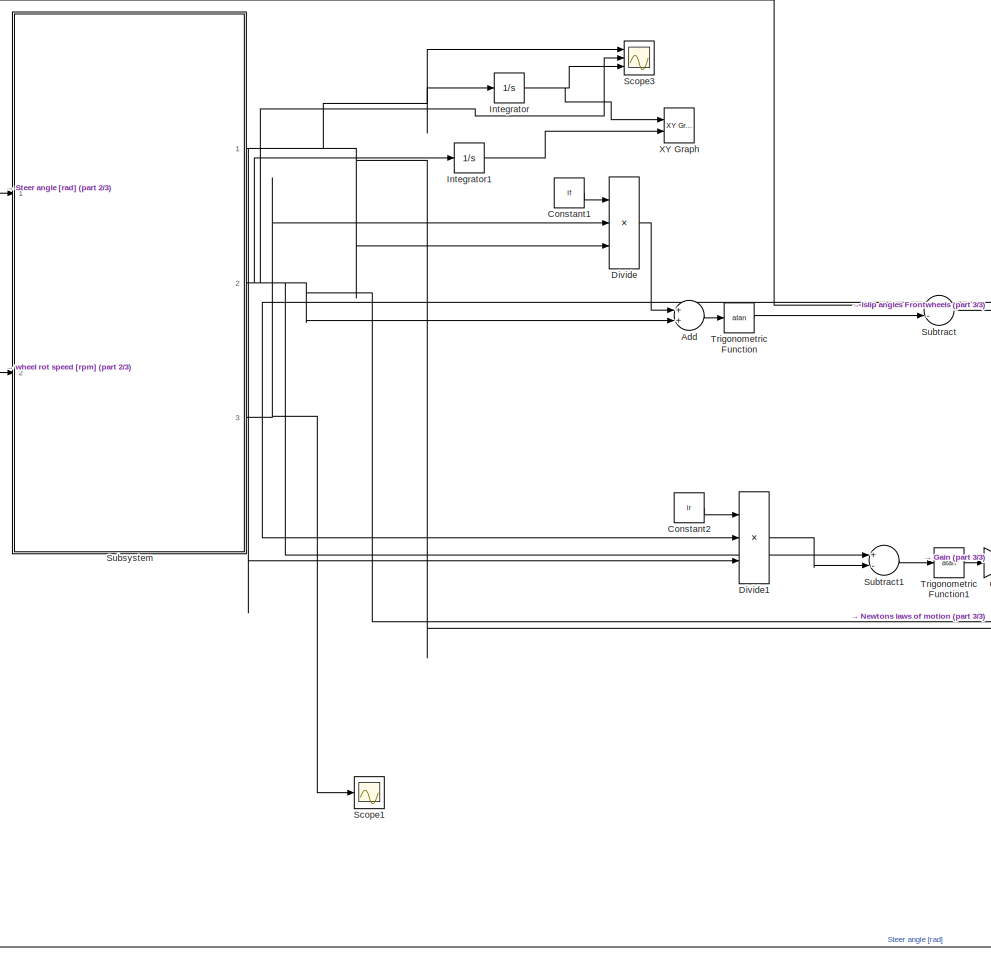
[diagram: root canvas - part 1/3, center side, full height]
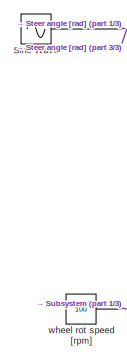
[diagram: root canvas - part 2/3, top left region]
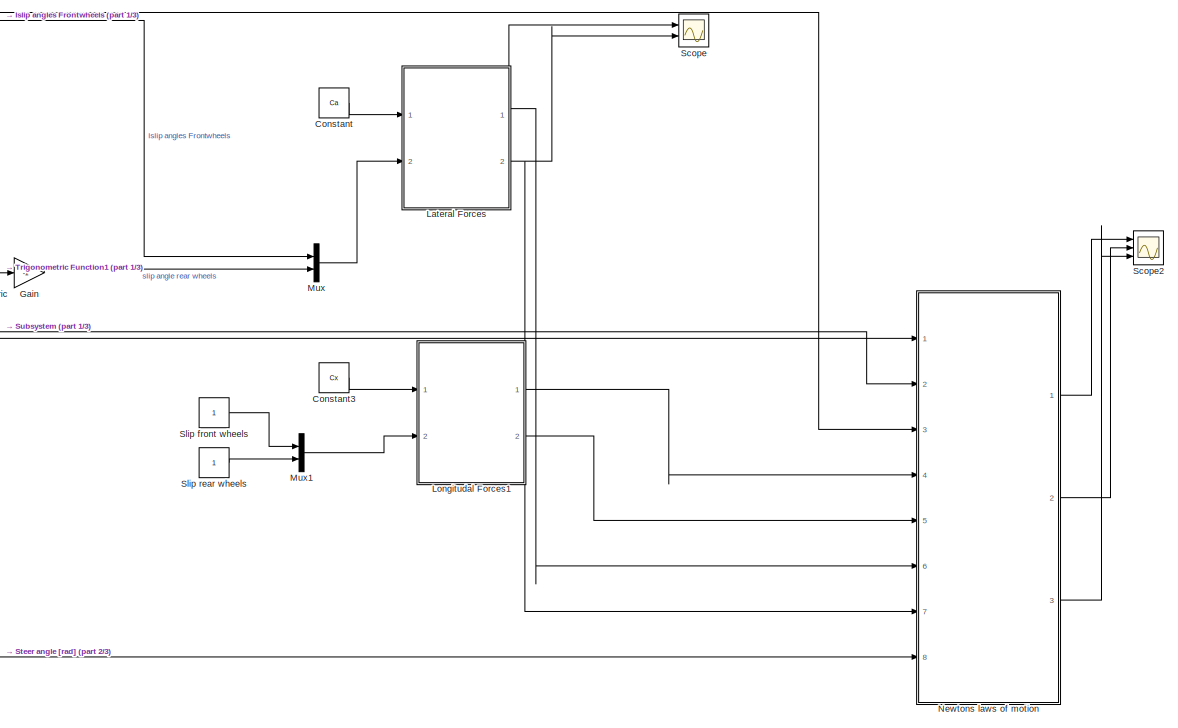
[diagram: root canvas - part 3/3, middle right region]
MODEL slx_64b74eef615d
KIND model
CONFIG AbsTol = auto
CONFIG EnableMultiTasking = off
CONFIG FixedStep = auto
CONFIG MaxStep = auto
CONFIG MinStep = auto
CONFIG RelTol = 1e-3
CONFIG SampleTimeConstraint = Unconstrained
CONFIG Solver = VariableStepAuto
CONFIG SolverName = VariableStepAuto
CONFIG StartTime = 0.0
CONFIG StopTime = 10.0
BLOCK [Sum] Add
  InputSameDT = off
  OutDataTypeStr = Inherit: Inherit via internal rule
  Ports = [2, 1]
  SaturateOnIntegerOverflow = off
BLOCK [Constant] Constant
  Value = Ca
BLOCK [Constant] Constant1
  Value = lf
BLOCK [Constant] Constant2
  Value = lr
BLOCK [Constant] Constant3
  Value = Cx
BLOCK [Product] Divide
  InputSameDT = off
  Inputs = **/
  OutDataTypeStr = Inherit: Inherit via internal rule
  Ports = [3, 1]
  RndMeth = Floor
  SaturateOnIntegerOverflow = off
BLOCK [Product] Divide1
  InputSameDT = off
  Inputs = **/
  OutDataTypeStr = Inherit: Inherit via internal rule
  Ports = [3, 1]
  RndMeth = Floor
  SaturateOnIntegerOverflow = off
BLOCK [Gain] Gain
  Gain = -1
  OutDataTypeStr = Inherit: Inherit via internal rule
  ParamDataTypeStr = Inherit: Inherit via internal rule
  SaturateOnIntegerOverflow = off
BLOCK [Integrator] Integrator
  Ports = [1, 1]
BLOCK [Integrator] Integrator1
  Ports = [1, 1]
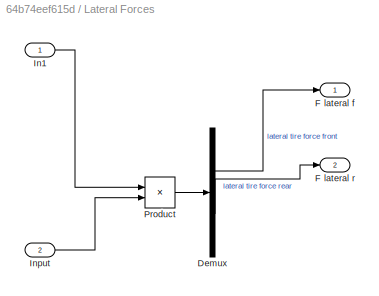
BLOCK [SubSystem] Lateral Forces
  Ports = [2, 2]
  RequestExecContextInheritance = off
BLOCK [Demux] Lateral Forces/Demux
  DisplayOption = bar
  Outputs = 2
  Ports = [1, 2]
BLOCK [Outport] Lateral Forces/F lateral f
  IconDisplay = Port number
BLOCK [Outport] Lateral Forces/F lateral r
  IconDisplay = Port number
  Port = 2
BLOCK [Inport] Lateral Forces/In1
  IconDisplay = Port number
BLOCK [Inport] Lateral Forces/Input
  IconDisplay = Port number
  Port = 2
BLOCK [Product] Lateral Forces/Product
  InputSameDT = off
  OutDataTypeStr = Inherit: Inherit via internal rule
  Ports = [2, 1]
  RndMeth = Floor
  SaturateOnIntegerOverflow = off
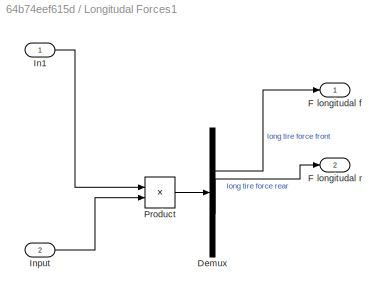
BLOCK [SubSystem] Longitudal Forces1
  Ports = [2, 2]
  RequestExecContextInheritance = off
BLOCK [Demux] Longitudal Forces1/Demux
  DisplayOption = bar
  Outputs = 2
  Ports = [1, 2]
BLOCK [Outport] Longitudal Forces1/F longitudal f
  IconDisplay = Port number
BLOCK [Outport] Longitudal Forces1/F longitudal r
  IconDisplay = Port number
  Port = 2
BLOCK [Inport] Longitudal Forces1/In1
  IconDisplay = Port number
BLOCK [Inport] Longitudal Forces1/Input
  IconDisplay = Port number
  Port = 2
BLOCK [Product] Longitudal Forces1/Product
  InputSameDT = off
  OutDataTypeStr = Inherit: Inherit via internal rule
  Ports = [2, 1]
  RndMeth = Floor
  SaturateOnIntegerOverflow = off
BLOCK [Mux] Mux
  DisplayOption = bar
  Inputs = 2
  Ports = [2, 1]
BLOCK [Mux] Mux1
  DisplayOption = bar
  Inputs = 2
  Ports = [2, 1]
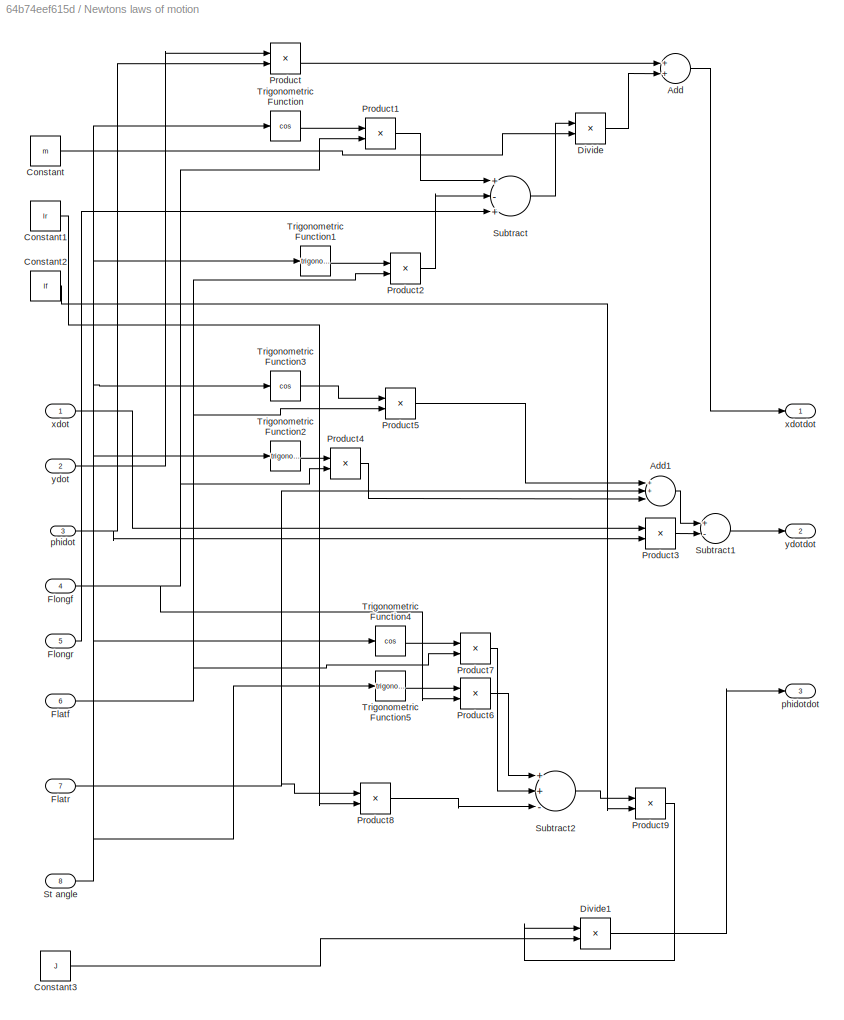
BLOCK [SubSystem] Newtons laws of motion 
  Ports = [8, 3]
  RequestExecContextInheritance = off
BLOCK [Sum] Newtons laws of motion /Add
  InputSameDT = off
  OutDataTypeStr = Inherit: Inherit via internal rule
  Ports = [2, 1]
  SaturateOnIntegerOverflow = off
BLOCK [Sum] Newtons laws of motion /Add1
  InputSameDT = off
  Inputs = 3
  OutDataTypeStr = Inherit: Inherit via internal rule
  Ports = [3, 1]
  SaturateOnIntegerOverflow = off
BLOCK [Constant] Newtons laws of motion /Constant
  Value = m
BLOCK [Constant] Newtons laws of motion /Constant1
  Value = lr
BLOCK [Constant] Newtons laws of motion /Constant2
  Value = lf
BLOCK [Constant] Newtons laws of motion /Constant3
  Value = J
BLOCK [Product] Newtons laws of motion /Divide
  InputSameDT = off
  Inputs = */
  OutDataTypeStr = Inherit: Inherit via internal rule
  Ports = [2, 1]
  RndMeth = Floor
  SaturateOnIntegerOverflow = off
BLOCK [Product] Newtons laws of motion /Divide1
  InputSameDT = off
  Inputs = */
  OutDataTypeStr = Inherit: Inherit via internal rule
  Ports = [2, 1]
  RndMeth = Floor
  SaturateOnIntegerOverflow = off
BLOCK [Inport] Newtons laws of motion /Flatf
  IconDisplay = Port number
  Port = 6
BLOCK [Inport] Newtons laws of motion /Flatr
  IconDisplay = Port number
  Port = 7
BLOCK [Inport] Newtons laws of motion /Flongf
  IconDisplay = Port number
  Port = 4
BLOCK [Inport] Newtons laws of motion /Flongr
  IconDisplay = Port number
  Port = 5
BLOCK [Product] Newtons laws of motion /Product
  InputSameDT = off
  OutDataTypeStr = Inherit: Inherit via internal rule
  Ports = [2, 1]
  RndMeth = Floor
  SaturateOnIntegerOverflow = off
BLOCK [Product] Newtons laws of motion /Product1
  InputSameDT = off
  OutDataTypeStr = Inherit: Inherit via internal rule
  Ports = [2, 1]
  RndMeth = Floor
  SaturateOnIntegerOverflow = off
BLOCK [Product] Newtons laws of motion /Product2
  InputSameDT = off
  OutDataTypeStr = Inherit: Inherit via internal rule
  Ports = [2, 1]
  RndMeth = Floor
  SaturateOnIntegerOverflow = off
BLOCK [Product] Newtons laws of motion /Product3
  InputSameDT = off
  OutDataTypeStr = Inherit: Inherit via internal rule
  Ports = [2, 1]
  RndMeth = Floor
  SaturateOnIntegerOverflow = off
BLOCK [Product] Newtons laws of motion /Product4
  InputSameDT = off
  OutDataTypeStr = Inherit: Inherit via internal rule
  Ports = [2, 1]
  RndMeth = Floor
  SaturateOnIntegerOverflow = off
BLOCK [Product] Newtons laws of motion /Product5
  InputSameDT = off
  OutDataTypeStr = Inherit: Inherit via internal rule
  Ports = [2, 1]
  RndMeth = Floor
  SaturateOnIntegerOverflow = off
BLOCK [Product] Newtons laws of motion /Product6
  InputSameDT = off
  OutDataTypeStr = Inherit: Inherit via internal rule
  Ports = [2, 1]
  RndMeth = Floor
  SaturateOnIntegerOverflow = off
BLOCK [Product] Newtons laws of motion /Product7
  InputSameDT = off
  OutDataTypeStr = Inherit: Inherit via internal rule
  Ports = [2, 1]
  RndMeth = Floor
  SaturateOnIntegerOverflow = off
BLOCK [Product] Newtons laws of motion /Product8
  InputSameDT = off
  OutDataTypeStr = Inherit: Inherit via internal rule
  Ports = [2, 1]
  RndMeth = Floor
  SaturateOnIntegerOverflow = off
BLOCK [Product] Newtons laws of motion /Product9
  InputSameDT = off
  OutDataTypeStr = Inherit: Inherit via internal rule
  Ports = [2, 1]
  RndMeth = Floor
  SaturateOnIntegerOverflow = off
BLOCK [Inport] Newtons laws of motion /St angle
  IconDisplay = Port number
  Port = 8
BLOCK [Sum] Newtons laws of motion /Subtract
  InputSameDT = off
  Inputs = +-+
  OutDataTypeStr = Inherit: Inherit via internal rule
  Ports = [3, 1]
  SaturateOnIntegerOverflow = off
BLOCK [Sum] Newtons laws of motion /Subtract1
  InputSameDT = off
  Inputs = +-
  OutDataTypeStr = Inherit: Inherit via internal rule
  Ports = [2, 1]
  SaturateOnIntegerOverflow = off
BLOCK [Sum] Newtons laws of motion /Subtract2
  InputSameDT = off
  Inputs = ++-
  OutDataTypeStr = Inherit: Inherit via internal rule
  Ports = [3, 1]
  SaturateOnIntegerOverflow = off
BLOCK [Trigonometry] Newtons laws of motion /Trigonometric Function
  Operator = cos
  Ports = [1, 1]
BLOCK [Trigonometry] Newtons laws of motion /Trigonometric Function1
  Ports = [1, 1]
BLOCK [Trigonometry] Newtons laws of motion /Trigonometric Function2
  Ports = [1, 1]
BLOCK [Trigonometry] Newtons laws of motion /Trigonometric Function3
  Operator = cos
  Ports = [1, 1]
BLOCK [Trigonometry] Newtons laws of motion /Trigonometric Function4
  Operator = cos
  Ports = [1, 1]
BLOCK [Trigonometry] Newtons laws of motion /Trigonometric Function5
  Ports = [1, 1]
BLOCK [Inport] Newtons laws of motion /phidot
  IconDisplay = Port number
  Port = 3
BLOCK [Outport] Newtons laws of motion /phidotdot
  IconDisplay = Port number
  Port = 3
BLOCK [Inport] Newtons laws of motion /xdot
  IconDisplay = Port number
BLOCK [Outport] Newtons laws of motion /xdotdot
  IconDisplay = Port number
BLOCK [Inport] Newtons laws of motion /ydot
  IconDisplay = Port number
  Port = 2
BLOCK [Outport] Newtons laws of motion /ydotdot
  IconDisplay = Port number
  Port = 2
BLOCK [Scope] Scope
  Floating = off
  NumInputPorts = 2
  Ports = [2]
  ScopeSpecificationString = Simulink.scopes.TimeScopeBlockCfg('CurrentConfiguration', extmgr.ConfigurationSet(extmgr.Configuration('Core','General UI',true),extmgr.Configuration('Core','Source UI',true),extmgr.Configuration('Sources','WiredSimulink',true),extmgr.Configuration('Visuals','Time Domain',true,'SerializedDisplays',{struct('MinYLimReal','-0.3349','MaxYLimReal','0.33569','YLabelReal','','MinYLimMag','0.00000','MaxYL...<+1398ch>
BLOCK [Scope] Scope1
  Floating = off
  NumInputPorts = 1
  Ports = [1]
  ScopeSpecificationString = Simulink.scopes.TimeScopeBlockCfg('CurrentConfiguration', extmgr.ConfigurationSet(extmgr.Configuration('Core','General UI',true),extmgr.Configuration('Core','Source UI',true),extmgr.Configuration('Sources','WiredSimulink',true,'DataLoggingVariableName','ScopeData1'),extmgr.Configuration('Visuals','Time Domain',true,'SerializedDisplays',{struct('MinYLimReal','-3.21409','MaxYLimReal','3.21579','YLab...<+1370ch>
BLOCK [Scope] Scope2
  Floating = off
  NumInputPorts = 3
  Ports = [3]
  ScopeSpecificationString = Simulink.scopes.TimeScopeBlockCfg('CurrentConfiguration', extmgr.ConfigurationSet(extmgr.Configuration('Core','General UI',true),extmgr.Configuration('Core','Source UI',true),extmgr.Configuration('Sources','WiredSimulink',true,'DataLoggingVariableName','ScopeData2'),extmgr.Configuration('Visuals','Time Domain',true,'SerializedDisplays',{struct('MinYLimReal','-1.68414','MaxYLimReal','4.80929','YLab...<+1438ch>
BLOCK [Scope] Scope3
  Floating = off
  NumInputPorts = 3
  Ports = [3]
  ScopeSpecificationString = Simulink.scopes.TimeScopeBlockCfg('CurrentConfiguration', extmgr.ConfigurationSet(extmgr.Configuration('Core','General UI',true),extmgr.Configuration('Core','Source UI',true),extmgr.Configuration('Sources','WiredSimulink',true,'DataLoggingVariableName','ScopeData3'),extmgr.Configuration('Visuals','Time Domain',true,'SerializedDisplays',{struct('MinYLimReal','-1.91641','MaxYLimReal','10.81995','YLa...<+1430ch>
BLOCK [Sin] Sine Wave
  Ports = [0, 1]
  SampleTime = 0
BLOCK [Constant] Slip front wheels 
BLOCK [Constant] Slip rear wheels
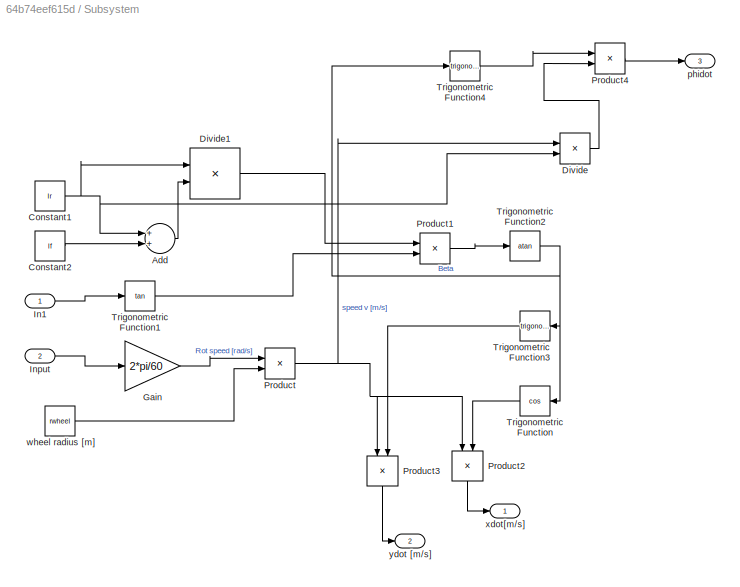
BLOCK [SubSystem] Subsystem
  Ports = [2, 3]
  RequestExecContextInheritance = off
BLOCK [Sum] Subsystem/Add
  InputSameDT = off
  OutDataTypeStr = Inherit: Inherit via internal rule
  Ports = [2, 1]
  SaturateOnIntegerOverflow = off
BLOCK [Constant] Subsystem/Constant1
  Value = lr
BLOCK [Constant] Subsystem/Constant2
  Value = lf
BLOCK [Product] Subsystem/Divide
  InputSameDT = off
  Inputs = */
  OutDataTypeStr = Inherit: Inherit via internal rule
  Ports = [2, 1]
  RndMeth = Floor
  SaturateOnIntegerOverflow = off
BLOCK [Product] Subsystem/Divide1
  InputSameDT = off
  Inputs = */
  OutDataTypeStr = Inherit: Inherit via internal rule
  Ports = [2, 1]
  RndMeth = Floor
  SaturateOnIntegerOverflow = off
BLOCK [Gain] Subsystem/Gain
  Gain = 2*pi/60
  OutDataTypeStr = Inherit: Inherit via internal rule
  ParamDataTypeStr = Inherit: Inherit via internal rule
  SaturateOnIntegerOverflow = off
BLOCK [Inport] Subsystem/In1
  IconDisplay = Port number
BLOCK [Inport] Subsystem/Input
  IconDisplay = Port number
  Port = 2
BLOCK [Product] Subsystem/Product
  InputSameDT = off
  OutDataTypeStr = Inherit: Inherit via internal rule
  Ports = [2, 1]
  RndMeth = Floor
  SaturateOnIntegerOverflow = off
BLOCK [Product] Subsystem/Product1
  InputSameDT = off
  OutDataTypeStr = Inherit: Inherit via internal rule
  Ports = [2, 1]
  RndMeth = Floor
  SaturateOnIntegerOverflow = off
BLOCK [Product] Subsystem/Product2
  InputSameDT = off
  OutDataTypeStr = Inherit: Inherit via internal rule
  Ports = [2, 1]
  RndMeth = Floor
  SaturateOnIntegerOverflow = off
BLOCK [Product] Subsystem/Product3
  InputSameDT = off
  OutDataTypeStr = Inherit: Inherit via internal rule
  Ports = [2, 1]
  RndMeth = Floor
  SaturateOnIntegerOverflow = off
BLOCK [Product] Subsystem/Product4
  InputSameDT = off
  OutDataTypeStr = Inherit: Inherit via internal rule
  Ports = [2, 1]
  RndMeth = Floor
  SaturateOnIntegerOverflow = off
BLOCK [Trigonometry] Subsystem/Trigonometric Function
  Operator = cos
  Ports = [1, 1]
BLOCK [Trigonometry] Subsystem/Trigonometric Function1
  Operator = tan
  Ports = [1, 1]
BLOCK [Trigonometry] Subsystem/Trigonometric Function2
  Operator = atan
  Ports = [1, 1]
BLOCK [Trigonometry] Subsystem/Trigonometric Function3
  Ports = [1, 1]
BLOCK [Trigonometry] Subsystem/Trigonometric Function4
  Ports = [1, 1]
BLOCK [Outport] Subsystem/phidot
  IconDisplay = Port number
  Port = 3
BLOCK [Constant] Subsystem/wheel radius [m]
  Value = rwheel
BLOCK [Outport] Subsystem/xdot[m//s]
  IconDisplay = Port number
BLOCK [Outport] Subsystem/ydot [m//s]
  IconDisplay = Port number
  Port = 2
BLOCK [Sum] Subtract
  InputSameDT = off
  Inputs = +-
  OutDataTypeStr = Inherit: Inherit via internal rule
  Ports = [2, 1]
  SaturateOnIntegerOverflow = off
BLOCK [Sum] Subtract1
  InputSameDT = off
  Inputs = +-
  OutDataTypeStr = Inherit: Inherit via internal rule
  Ports = [2, 1]
  SaturateOnIntegerOverflow = off
BLOCK [Trigonometry] Trigonometric Function
  Operator = atan
  Ports = [1, 1]
BLOCK [Trigonometry] Trigonometric Function1
  Operator = atan
  Ports = [1, 1]
BLOCK [Reference] XY Graph  REF=simulink/Sinks/XY Graph
  Ports = [2]
  SourceBlock = simulink/Sinks/XY Graph
  SourceProductBaseCode = SL
  SourceProductName = Simulink
  SourceType = XY scope.
BLOCK [Constant] wheel rot speed [rpm]
  Value = 100
LINE Add:1 -> Trigonometric Function:1
LINE Constant1:1 -> Divide:1
LINE Constant2:1 -> Divide1:1
LINE Constant3:1 -> Longitudal Forces1:1
LINE Constant:1 -> Lateral Forces:1
LINE Divide1:1 -> Subtract1:2
LINE Divide:1 -> Add:1
LINE Gain:1 -> Mux:2
LINE Integrator1:1 -> XY Graph:2
NET Integrator:1 -> Scope3:3, XY Graph:1
LINE Lateral Forces/Demux:1 -> Lateral Forces/F lateral f:1
LINE Lateral Forces/Demux:2 -> Lateral Forces/F lateral r:1
LINE Lateral Forces/In1:1 -> Lateral Forces/Product:1
LINE Lateral Forces/Input:1 -> Lateral Forces/Product:2
LINE Lateral Forces/Product:1 -> Lateral Forces/Demux:1
NET Lateral Forces:1 -> Newtons laws of motion :6, Scope:1
NET Lateral Forces:2 -> Newtons laws of motion :7, Scope:2
LINE Longitudal Forces1/Demux:1 -> Longitudal Forces1/F longitudal f:1
LINE Longitudal Forces1/Demux:2 -> Longitudal Forces1/F longitudal r:1
LINE Longitudal Forces1/In1:1 -> Longitudal Forces1/Product:1
LINE Longitudal Forces1/Input:1 -> Longitudal Forces1/Product:2
LINE Longitudal Forces1/Product:1 -> Longitudal Forces1/Demux:1
LINE Longitudal Forces1:1 -> Newtons laws of motion :4
LINE Longitudal Forces1:2 -> Newtons laws of motion :5
LINE Mux1:1 -> Longitudal Forces1:2
LINE Mux:1 -> Lateral Forces:2
LINE Newtons laws of motion /Add1:1 -> Newtons laws of motion /Subtract1:1
LINE Newtons laws of motion /Add:1 -> Newtons laws of motion /xdotdot:1
LINE Newtons laws of motion /Constant1:1 -> Newtons laws of motion /Product8:2
LINE Newtons laws of motion /Constant2:1 -> Newtons laws of motion /Product9:2
LINE Newtons laws of motion /Constant3:1 -> Newtons laws of motion /Divide1:2
LINE Newtons laws of motion /Constant:1 -> Newtons laws of motion /Divide:2
LINE Newtons laws of motion /Divide1:1 -> Newtons laws of motion /phidotdot:1
LINE Newtons laws of motion /Divide:1 -> Newtons laws of motion /Add:2
NET Newtons laws of motion /Flatf:1 -> Newtons laws of motion /Product2:2, Newtons laws of motion /Product5:2, Newtons laws of motion /Product7:2
NET Newtons laws of motion /Flatr:1 -> Newtons laws of motion /Add1:2, Newtons laws of motion /Product8:1
NET Newtons laws of motion /Flongf:1 -> Newtons laws of motion /Product1:2, Newtons laws of motion /Product4:2, Newtons laws of motion /Product6:2
LINE Newtons laws of motion /Flongr:1 -> Newtons laws of motion /Subtract:3
LINE Newtons laws of motion /Product1:1 -> Newtons laws of motion /Subtract:1
LINE Newtons laws of motion /Product2:1 -> Newtons laws of motion /Subtract:2
LINE Newtons laws of motion /Product3:1 -> Newtons laws of motion /Subtract1:2
LINE Newtons laws of motion /Product4:1 -> Newtons laws of motion /Add1:3
LINE Newtons laws of motion /Product5:1 -> Newtons laws of motion /Add1:1
LINE Newtons laws of motion /Product6:1 -> Newtons laws of motion /Subtract2:1
LINE Newtons laws of motion /Product7:1 -> Newtons laws of motion /Subtract2:2
LINE Newtons laws of motion /Product8:1 -> Newtons laws of motion /Subtract2:3
LINE Newtons laws of motion /Product9:1 -> Newtons laws of motion /Divide1:1
LINE Newtons laws of motion /Product:1 -> Newtons laws of motion /Add:1
NET Newtons laws of motion /St angle:1 -> Newtons laws of motion /Trigonometric Function1:1, Newtons laws of motion /Trigonometric Function2:1, Newtons laws of motion /Trigonometric Function3:1, Newtons laws of motion /Trigonometric Function4:1, Newtons laws of motion /Trigonometric Function5:1, Newtons laws of motion /Trigonometric Function:1
LINE Newtons laws of motion /Subtract1:1 -> Newtons laws of motion /ydotdot:1
LINE Newtons laws of motion /Subtract2:1 -> Newtons laws of motion /Product9:1
LINE Newtons laws of motion /Subtract:1 -> Newtons laws of motion /Divide:1
LINE Newtons laws of motion /Trigonometric Function1:1 -> Newtons laws of motion /Product2:1
LINE Newtons laws of motion /Trigonometric Function2:1 -> Newtons laws of motion /Product4:1
LINE Newtons laws of motion /Trigonometric Function3:1 -> Newtons laws of motion /Product5:1
LINE Newtons laws of motion /Trigonometric Function4:1 -> Newtons laws of motion /Product7:1
LINE Newtons laws of motion /Trigonometric Function5:1 -> Newtons laws of motion /Product6:1
LINE Newtons laws of motion /Trigonometric Function:1 -> Newtons laws of motion /Product1:1
NET Newtons laws of motion /phidot:1 -> Newtons laws of motion /Product3:2, Newtons laws of motion /Product:2
LINE Newtons laws of motion /xdot:1 -> Newtons laws of motion /Product3:1
LINE Newtons laws of motion /ydot:1 -> Newtons laws of motion /Product:1
LINE Newtons laws of motion :1 -> Scope2:1
LINE Newtons laws of motion :2 -> Scope2:2
LINE Newtons laws of motion :3 -> Scope2:3
NET Sine Wave:1 -> Newtons laws of motion :8, Subsystem:1, Subtract:1
LINE Slip front wheels :1 -> Mux1:1
LINE Slip rear wheels:1 -> Mux1:2
LINE Subsystem/Add:1 -> Subsystem/Divide1:2
NET Subsystem/Constant1:1 -> Subsystem/Add:1, Subsystem/Divide1:1, Subsystem/Divide:2
LINE Subsystem/Constant2:1 -> Subsystem/Add:2
LINE Subsystem/Divide1:1 -> Subsystem/Product1:1
LINE Subsystem/Divide:1 -> Subsystem/Product4:2
LINE Subsystem/Gain:1 -> Subsystem/Product:1
LINE Subsystem/In1:1 -> Subsystem/Trigonometric Function1:1
LINE Subsystem/Input:1 -> Subsystem/Gain:1
LINE Subsystem/Product1:1 -> Subsystem/Trigonometric Function2:1
LINE Subsystem/Product2:1 -> Subsystem/xdot[m//s]:1
LINE Subsystem/Product3:1 -> Subsystem/ydot [m//s]:1
LINE Subsystem/Product4:1 -> Subsystem/phidot:1
NET Subsystem/Product:1 -> Subsystem/Divide:1, Subsystem/Product2:1, Subsystem/Product3:1
LINE Subsystem/Trigonometric Function1:1 -> Subsystem/Product1:2
NET Subsystem/Trigonometric Function2:1 -> Subsystem/Trigonometric Function3:1, Subsystem/Trigonometric Function4:1, Subsystem/Trigonometric Function:1
LINE Subsystem/Trigonometric Function3:1 -> Subsystem/Product3:2
LINE Subsystem/Trigonometric Function4:1 -> Subsystem/Product4:1
LINE Subsystem/Trigonometric Function:1 -> Subsystem/Product2:2
LINE Subsystem/wheel radius [m]:1 -> Subsystem/Product:2
NET Subsystem:1 -> Divide1:3, Divide:3, Integrator:1, Newtons laws of motion :1, Scope3:1
NET Subsystem:2 -> Add:2, Integrator1:1, Newtons laws of motion :2, Scope3:2, Subtract1:1
NET Subsystem:3 -> Divide1:2, Divide:2, Newtons laws of motion :3, Scope1:1
LINE Subtract1:1 -> Trigonometric Function1:1
LINE Subtract:1 -> Mux:1
LINE Trigonometric Function1:1 -> Gain:1
LINE Trigonometric Function:1 -> Subtract:2
LINE wheel rot speed [rpm]:1 -> Subsystem:2
note: NET lines group one-source signal fan-out (src -> all destinations, sorted); 1:1 wires keep LINE
